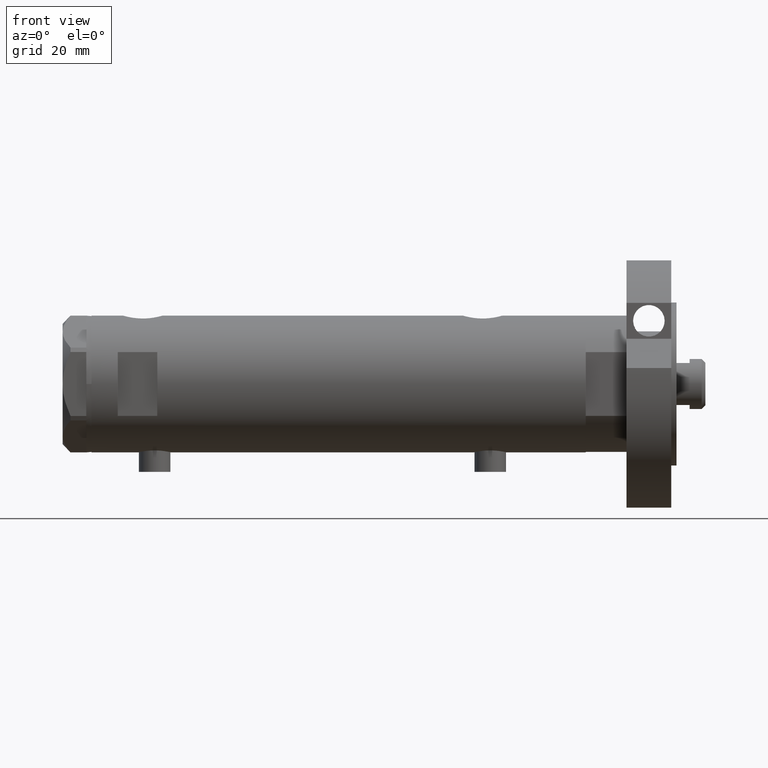
[diagram: clean part render]
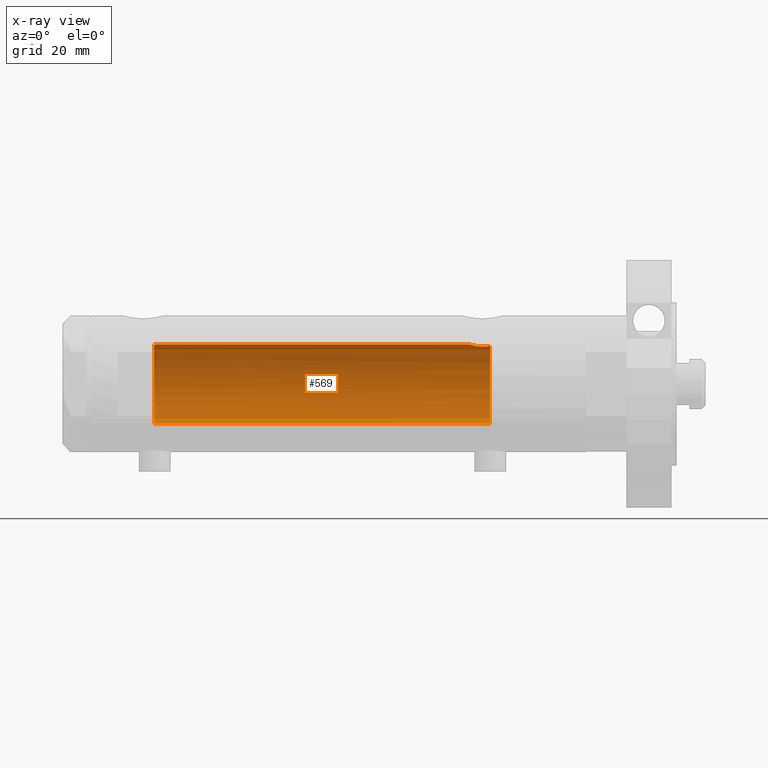
[diagram: x-ray — body ghosted, one internal face saturated and labeled with its STEP entity id]
A machine part, front view, then the same camera in x-ray: the body is ghosted and one INTERNAL B-rep face — a face not visible from any outside direction — is saturated and labeled: STEP entity #569.
In plain terms, the highlighted cylindrical surface (partial cylindrical patch) has radius 15 mm, axis along (1, 0, -0).
Its self-contained STEP definition (entity closure, byte-faithful):
#92 = CARTESIAN_POINT ( 'NONE',  ( 14.18274079043653124, 4.883732009304969424, -54.63167541567703722 ) ) ;
#156 = LINE ( 'NONE', #5607, #400 ) ;
#187 = CARTESIAN_POINT ( 'NONE',  ( 14.30778609824508152, 4.504821240468950272, -52.89964104205773765 ) ) ;
#217 = EDGE_CURVE ( 'NONE', #1228, #2033, #941, .T. ) ;
#400 = VECTOR ( 'NONE', #2626, 1000.000000000000000 ) ;
#459 = VERTEX_POINT ( 'NONE', #794 ) ;
#563 = B_SPLINE_CURVE_WITH_KNOTS ( 'NONE', 3,
 ( #3592, #1511, #2148, #5586, #1086, #4054, #6048, #1541 ),
 .UNSPECIFIED., .F., .F.,
 ( 4, 2, 2, 4 ),
 ( 0.02826119741494477131, 0.02885214443185063829, 0.02944309144875650874, 0.03062498548256823577 ),
 .UNSPECIFIED. ) ;
#569 = ADVANCED_FACE ( 'NONE', ( #1879 ), #3892, .F. ) ;
#580 = CARTESIAN_POINT ( 'NONE',  ( 14.46277203719950855, 3.978470183374505975, -57.55000000000000426 ) ) ;
#645 = CARTESIAN_POINT ( 'NONE',  ( 14.99509227038106296, 0.4430293709771138122, -49.90006686301530436 ) ) ;
#680 = CARTESIAN_POINT ( 'NONE',  ( 15.00000000000000000, 5.959273468635536151E-16, -49.88499999999999801 ) ) ;
#751 = CARTESIAN_POINT ( 'NONE',  ( 14.23996709707015818, 4.714409263334266242, -53.52876674044652106 ) ) ;
#781 = CARTESIAN_POINT ( 'NONE',  ( 14.82638779339053947, 2.275571356824483082, 70.15000000000000568 ) ) ;
#794 = CARTESIAN_POINT ( 'NONE',  ( 15.00000000000000000, 0.000000000000000000, 69.58500000000000796 ) ) ;
#816 = EDGE_CURVE ( 'NONE', #459, #1717, #156, .T. ) ;
#913 = DIRECTION ( 'NONE',  ( -0.000000000000000000, -0.000000000000000000, -1.000000000000000000 ) ) ;
#941 = LINE ( 'NONE', #2956, #5356 ) ;
#1053 = ORIENTED_EDGE ( 'NONE', *, *, #5957, .F. ) ;
#1086 = CARTESIAN_POINT ( 'NONE',  ( 14.93895715383719214, 1.365440931094928256, 69.77638192761232006 ) ) ;
#1131 = CARTESIAN_POINT ( 'NONE',  ( -15.00000000000000000, 0.000000000000000000, 70.15000000000000568 ) ) ;
#1211 = CARTESIAN_POINT ( 'NONE',  ( 14.81695028448457130, 2.344053258630407033, -50.48122781573722051 ) ) ;
#1228 = VERTEX_POINT ( 'NONE', #1131 ) ;
#1243 = CARTESIAN_POINT ( 'NONE',  ( 14.39420242489971535, 4.221147702577646932, -57.17871871185443666 ) ) ;
#1285 = AXIS2_PLACEMENT_3D ( 'NONE', #1296, #2180, #4188 ) ;
#1296 = CARTESIAN_POINT ( 'NONE',  ( 0.000000000000000000, 0.000000000000000000, -57.55000000000000426 ) ) ;
#1493 = EDGE_CURVE ( 'NONE', #4286, #459, #563, .T. ) ;
#1511 = CARTESIAN_POINT ( 'NONE',  ( 14.85285765243877876, 2.103108122960808402, 70.05873200114290000 ) ) ;
#1541 = CARTESIAN_POINT ( 'NONE',  ( 15.00000000000000000, 0.000000000000000000, 69.58500000000000796 ) ) ;
#1709 = CARTESIAN_POINT ( 'NONE',  ( 14.99999999999999822, 0.2215872191885691345, -49.88500000000000512 ) ) ;
#1717 = VERTEX_POINT ( 'NONE', #4472 ) ;
#1743 = CARTESIAN_POINT ( 'NONE',  ( 14.20808274384303971, 4.809639920165276195, -55.51496246579131366 ) ) ;
#1879 = FACE_OUTER_BOUND ( 'NONE', #3753, .T. ) ;
#2033 = VERTEX_POINT ( 'NONE', #5709 ) ;
#2086 = ORIENTED_EDGE ( 'NONE', *, *, #6412, .T. ) ;
#2127 = DIRECTION ( 'NONE',  ( 1.000000000000000000, 0.000000000000000000, 0.000000000000000000 ) ) ;
#2148 = CARTESIAN_POINT ( 'NONE',  ( 14.87714698525761214, 1.924825815456619793, 69.97761219789977361 ) ) ;
#2180 = DIRECTION ( 'NONE',  ( 0.000000000000000000, 0.000000000000000000, -1.000000000000000000 ) ) ;
#2205 = CARTESIAN_POINT ( 'NONE',  ( 14.97547159671691475, 0.8856171163179413774, -49.96107436056317397 ) ) ;
#2529 = ORIENTED_EDGE ( 'NONE', *, *, #217, .T. ) ;
#2588 = DIRECTION ( 'NONE',  ( 0.000000000000000000, 0.000000000000000000, 1.000000000000000000 ) ) ;
#2626 = DIRECTION ( 'NONE',  ( -0.000000000000000000, -0.000000000000000000, -1.000000000000000000 ) ) ;
#2627 = CARTESIAN_POINT ( 'NONE',  ( 14.90012193493785198, 1.740148100968098577, -50.20148967824481900 ) ) ;
#2693 = CARTESIAN_POINT ( 'NONE',  ( 14.19789541567450364, 4.839422427565552631, -55.29531557750246407 ) ) ;
#2728 = CARTESIAN_POINT ( 'NONE',  ( 14.30582738521795072, 4.511024637967008033, -56.58517547595723585 ) ) ;
#2757 = CIRCLE ( 'NONE', #1285, 15.00000000000000000 ) ;
#2956 = CARTESIAN_POINT ( 'NONE',  ( -15.00000000000000000, 0.000000000000000000, 93.95000000000001705 ) ) ;
#3119 = CARTESIAN_POINT ( 'NONE',  ( 14.33601656325283180, 4.414747171699214157, -52.69405684818109137 ) ) ;
#3304 = AXIS2_PLACEMENT_3D ( 'NONE', #4631, #2588, #2127 ) ;
#3592 = CARTESIAN_POINT ( 'NONE',  ( 14.82638779339053947, 2.275571356824483082, 70.15000000000000568 ) ) ;
#3639 = ORIENTED_EDGE ( 'NONE', *, *, #4628, .T. ) ;
#3648 = CARTESIAN_POINT ( 'NONE',  ( 14.84719462287499958, 2.145357993387301043, -50.37798666051605778 ) ) ;
#3682 = CARTESIAN_POINT ( 'NONE',  ( 14.23822651595894584, 4.719656459720482644, -55.95110225956647554 ) ) ;
#3753 = EDGE_LOOP ( 'NONE', ( #4151, #3932, #2086, #2529, #3639, #1053 ) ) ;
#3831 = VERTEX_POINT ( 'NONE', #580 ) ;
#3875 = AXIS2_PLACEMENT_3D ( 'NONE', #6439, #913, #5921 ) ;
#3892 = CYLINDRICAL_SURFACE ( 'NONE', #3875, 15.00000000000000000 ) ;
#3932 = ORIENTED_EDGE ( 'NONE', *, *, #1493, .F. ) ;
#4054 = CARTESIAN_POINT ( 'NONE',  ( 14.98404286071220604, 0.7911628595372720563, 69.63357750803344004 ) ) ;
#4144 = CARTESIAN_POINT ( 'NONE',  ( 14.42796195111116830, 4.108450791336244023, -52.10736184290815487 ) ) ;
#4151 = ORIENTED_EDGE ( 'NONE', *, *, #816, .F. ) ;
#4174 = CARTESIAN_POINT ( 'NONE',  ( 14.92306512695867049, 1.532295990539004116, -50.12730056478243768 ) ) ;
#4188 = DIRECTION ( 'NONE',  ( -1.000000000000000000, 0.000000000000000000, 0.000000000000000000 ) ) ;
#4286 = VERTEX_POINT ( 'NONE', #781 ) ;
#4472 = CARTESIAN_POINT ( 'NONE',  ( 15.00000000000000000, 5.959273468635536151E-16, -49.88499999999999801 ) ) ;
#4600 = CARTESIAN_POINT ( 'NONE',  ( 14.49939476291675078, 3.855488469592460277, -51.74998822577912705 ) ) ;
#4628 = EDGE_CURVE ( 'NONE', #2033, #3831, #2757, .T. ) ;
#4631 = CARTESIAN_POINT ( 'NONE',  ( 0.000000000000000000, 0.000000000000000000, 70.15000000000000568 ) ) ;
#4638 = CARTESIAN_POINT ( 'NONE',  ( 14.19413554982521219, 4.851369549374611623, -54.17746179061393264 ) ) ;
#4704 = CARTESIAN_POINT ( 'NONE',  ( 14.33334483745703203, 4.423389780079196143, -56.78724945987952566 ) ) ;
#5119 = CARTESIAN_POINT ( 'NONE',  ( 14.25831405531604545, 4.659025730769700502, -56.16798855846089822 ) ) ;
#5157 = CARTESIAN_POINT ( 'NONE',  ( 14.42780822725581125, 4.105572710089619548, -57.36940228115441442 ) ) ;
#5267 = CARTESIAN_POINT ( 'NONE',  ( 14.72004460873233000, 2.909758128378248987, -50.82614485536701210 ) ) ;
#5356 = VECTOR ( 'NONE', #6494, 1000.000000000000000 ) ;
#5586 = CARTESIAN_POINT ( 'NONE',  ( 14.92022334814851448, 1.556082286439816720, 69.83634472570267349 ) ) ;
#5607 = CARTESIAN_POINT ( 'NONE',  ( 15.00000000000000000, 1.836970198721029589E-15, 93.95000000000001705 ) ) ;
#5641 = CARTESIAN_POINT ( 'NONE',  ( 14.64710079709035107, 3.249565827911971017, -51.10237283776275774 ) ) ;
#5671 = CARTESIAN_POINT ( 'NONE',  ( 14.46277203719950855, 3.978470183374505975, -57.55000000000000426 ) ) ;
#5709 = CARTESIAN_POINT ( 'NONE',  ( -15.00000000000000000, 0.000000000000000000, -57.55000000000000426 ) ) ;
#5736 = CARTESIAN_POINT ( 'NONE',  ( 14.25987224063200465, 4.654266980155760791, -53.31645838593741615 ) ) ;
#5921 = DIRECTION ( 'NONE',  ( -1.000000000000000000, 0.000000000000000000, 0.000000000000000000 ) ) ;
#5957 = EDGE_CURVE ( 'NONE', #1717, #3831, #5999, .T. ) ;
#5999 = B_SPLINE_CURVE_WITH_KNOTS ( 'NONE', 3,
 ( #680, #1709, #645, #2205, #6173, #4174, #2627, #3648, #1211, #5267, #5641, #4600, #4144, #3119, #187, #5736, #751, #4638, #92, #2693, #1743, #3682, #5119, #2728, #4704, #1243, #5157, #5671 ),
 .UNSPECIFIED., .F., .F.,
 ( 4, 2, 2, 2, 2, 2, 2, 2, 2, 2, 2, 2, 2, 4 ),
 ( 0.01531448496322443745, 0.01597936247866482348, 0.01664423999410521299, 0.01730911750954559902, 0.01797399502498598853, 0.01930375005586676060, 0.02063350508674753614, 0.02129838260218791524, 0.02196326011762829433, 0.02329301514850904906, 0.02395789266394942815, 0.02462277017938980378, 0.02528764769483018288, 0.02595252521027056197 ),
 .UNSPECIFIED. ) ;
#6048 = CARTESIAN_POINT ( 'NONE',  ( 15.00000000000000178, 0.3998316629799374411, 69.58500000000002217 ) ) ;
#6126 = CIRCLE ( 'NONE', #3304, 15.00000000000000000 ) ;
#6173 = CARTESIAN_POINT ( 'NONE',  ( 14.96070684509191295, 1.105917936056761253, -50.00719211967313527 ) ) ;
#6412 = EDGE_CURVE ( 'NONE', #4286, #1228, #6126, .T. ) ;
#6439 = CARTESIAN_POINT ( 'NONE',  ( 0.000000000000000000, 0.000000000000000000, 93.95000000000001705 ) ) ;
#6494 = DIRECTION ( 'NONE',  ( -0.000000000000000000, -0.000000000000000000, -1.000000000000000000 ) ) ;